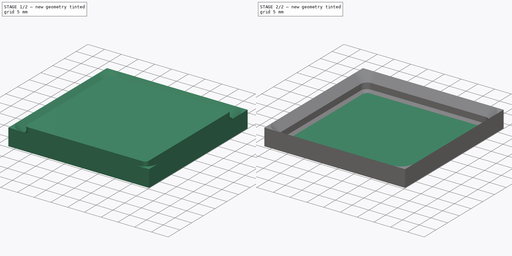
[diagram: build sequence overview — one tinted view per stage of 2, left to right]
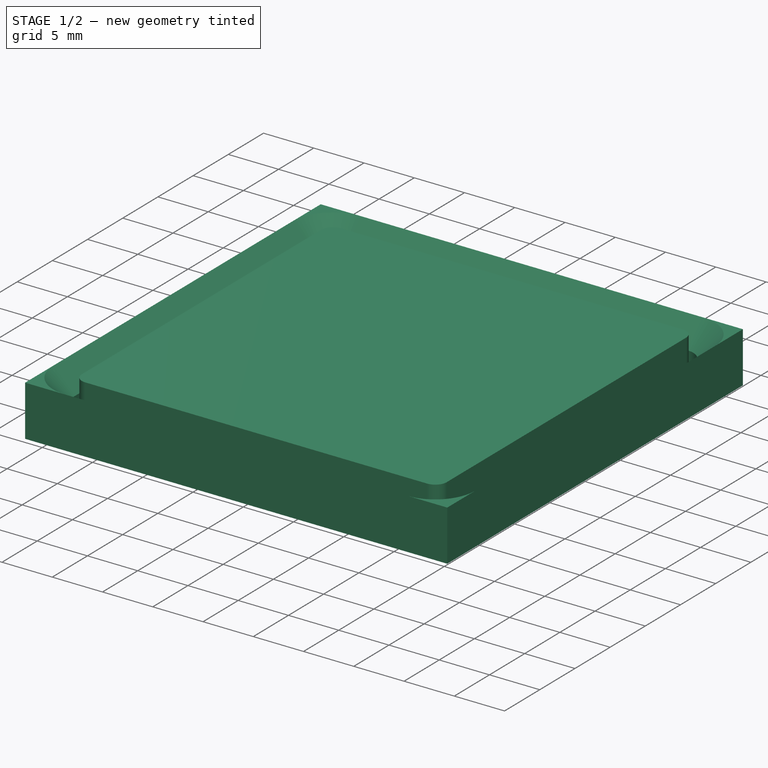
[diagram: stage 1 of 2 — iso view after this stage's code; geometry added in this stage tinted green]
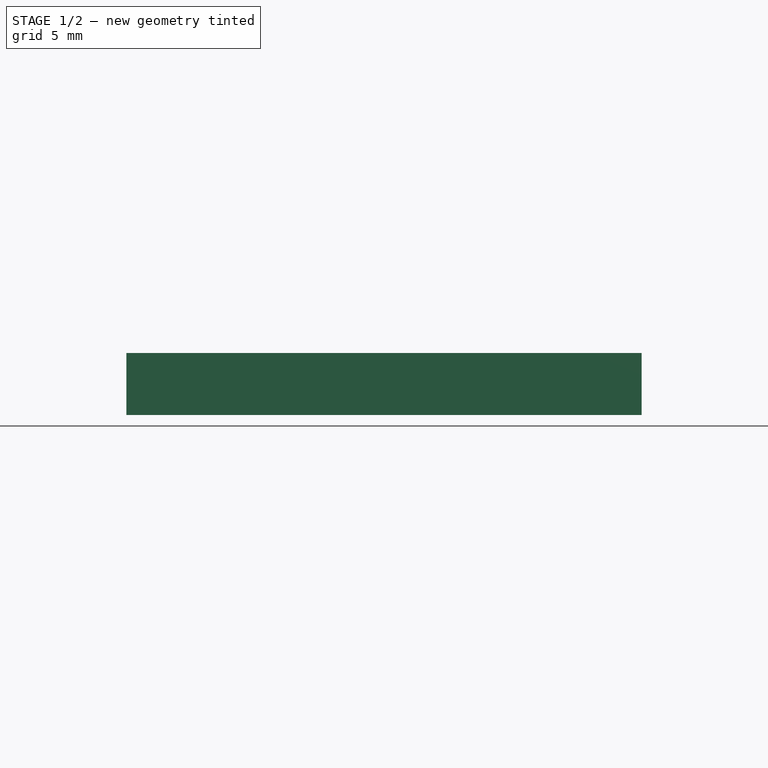
[diagram: stage 1 of 2 — front view after this stage's code; geometry added in this stage tinted green]
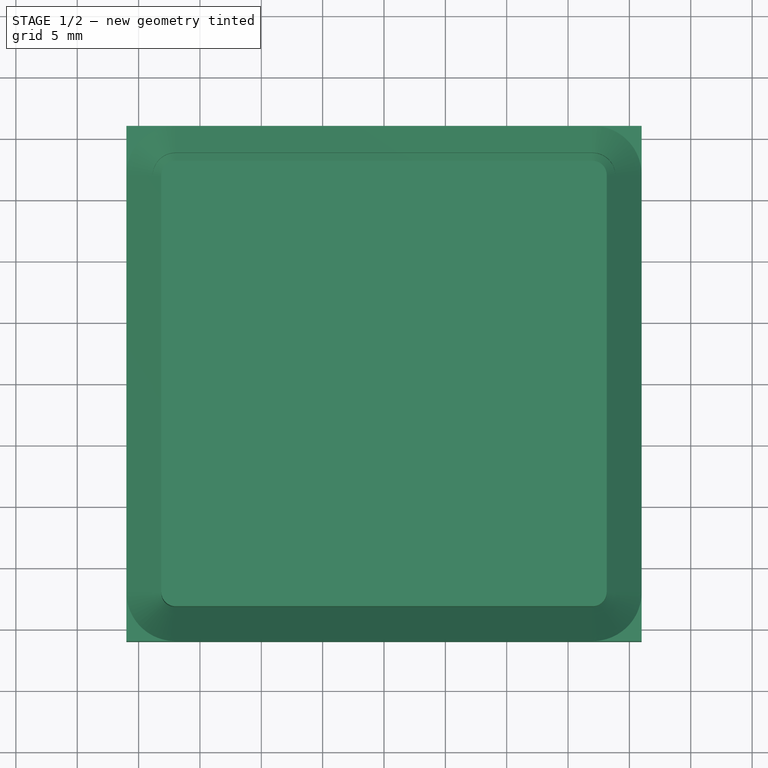
[diagram: stage 1 of 2 — top view after this stage's code; geometry added in this stage tinted green]
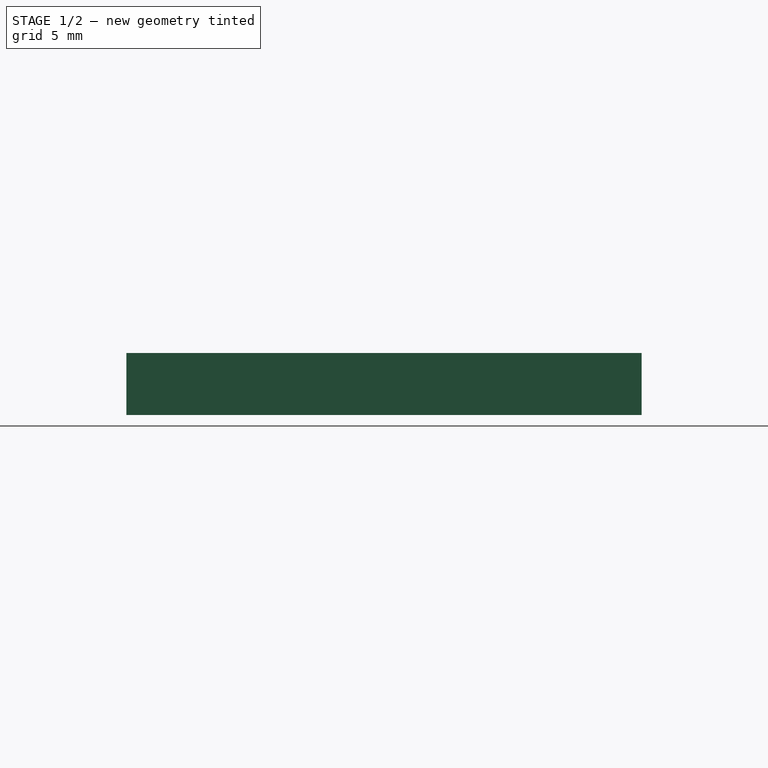
[diagram: stage 1 of 2 — right view after this stage's code; geometry added in this stage tinted green]
FCSTD DOCUMENT  (FreeCAD 1.0R38806 (Git))
Label: Opgave_3.0.5
License: All rights reserved
LicenseURL: http://en.wikipedia.org/wiki/All_rights_reserved
objects: Sketcher::SketchObject×4, App::VarSet×1, PartDesign::Pad×1, PartDesign::SubtractivePipe×1, PartDesign::Pocket×1, PartDesign::Body×1, App::Part×1
note: 18 computed .brp shape members not serialized (recipe doc carries the construction recipe); baked Part::Feature solids carry a one-line shape summary decoded from their .brp

FEATURE [App::VarSet] VarSet
  BasePlateGridX = 2
  BasePlateGridY = 3
  BasePlateProfileAngle = 45
  BasePlateProfileHeigth = 4.65
  BasePlateProfileLower = 0.7
  BasePlateProfileMiddle = 1.8
  BasePlateProfileTop = 2.15
  BaseplatePad2nd_Length = 0.4
  BaseplatePadLength = 3
  GridOuterRadius = 4
  GridSize = 42
  expr: BasePlateProfileHeigth = BasePlateProfileLower + BasePlateProfileMiddle + BasePlateProfileTop
FEATURE [Sketcher::SketchObject] Sketch
  ArcFitTolerance = 1e-06
  AttachmentSupport = -> [XY_Plane001]
  FullyConstrained = true
  MakeInternals = false
  MapMode = 5
  expr: Constraints[9] = VarSet.GridSize
  sketch-geometry (4):
    g0: LineSegment StartX=-21 StartY=-21 StartZ=0 EndX=21 EndY=-21 EndZ=0
    g1: LineSegment StartX=21 StartY=-21 StartZ=0 EndX=21 EndY=21 EndZ=0
    g2: LineSegment StartX=21 StartY=21 StartZ=0 EndX=-21 EndY=21 EndZ=0
    g3: LineSegment StartX=-21 StartY=21 StartZ=0 EndX=-21 EndY=-21 EndZ=0
  constraints (11):
    c: Coincident(g0,g1)
    c: Coincident(g1,g2)
    c: Coincident(g2,g3)
    c: Coincident(g3,g0)
    c: Horizontal(g0)
    c: Horizontal(g2)
    c: Vertical(g1)
    c: Vertical(g3)
    c: Equal(g3,g0)
    c: DistanceX(g0,g0) = 42
    c: Symmetric(g2,g0,g-1)
FEATURE [Sketcher::SketchObject] Sketch001
  ArcFitTolerance = 1e-06
  AttachmentSupport = -> [XY_Plane001]
  ExternalGeometry = -> [Sketch]
  FullyConstrained = true
  MakeInternals = false
  MapMode = 5
  expr: Constraints[20] = VarSet.GridOuterRadius
  sketch-geometry (10):
    g0: LineSegment StartX=-17 StartY=-21 StartZ=0 EndX=17 EndY=-21 EndZ=0
    g1: LineSegment StartX=21 StartY=-17 StartZ=0 EndX=21 EndY=17 EndZ=0
    g2: LineSegment StartX=17 StartY=21 StartZ=0 EndX=-17 EndY=21 EndZ=0
    g3: LineSegment StartX=-21 StartY=17 StartZ=0 EndX=-21 EndY=-17 EndZ=0
    g4: ArcOfCircle CenterX=-17 CenterY=-17 CenterZ=0 NormalX=0 NormalY=0 NormalZ=1 AngleXU=0 Radius=4 StartAngle=3.14159 EndAngle=4.71239
    g5: ArcOfCircle CenterX=17 CenterY=-17 CenterZ=0 NormalX=0 NormalY=0 NormalZ=1 AngleXU=0 Radius=4 StartAngle=4.71239 EndAngle=6.28319
    g6: ArcOfCircle CenterX=17 CenterY=17 CenterZ=0 NormalX=0 NormalY=0 NormalZ=1 AngleXU=0 Radius=4 StartAngle=3e-16 EndAngle=1.5708
    g7: ArcOfCircle CenterX=-17 CenterY=17 CenterZ=0 NormalX=0 NormalY=0 NormalZ=1 AngleXU=0 Radius=4 StartAngle=1.5708 EndAngle=3.14159
    g8: GeomPoint [constr] X=21 Y=21 Z=0
    g9: GeomPoint [constr] X=0 Y=0 Z=0
  constraints (22):
    c: Tangent(g0,g4) = -1.5708
    c: Tangent(g0,g5) = -1.5708
    c: Tangent(g1,g5) = -1.5708
    c: Tangent(g1,g6) = -1.5708
    c: Tangent(g2,g6) = -1.5708
    c: Tangent(g2,g7) = -1.5708
    c: Tangent(g3,g7) = -1.5708
    c: Tangent(g3,g4) = -1.5708
    c: Horizontal(g0)
    c: Horizontal(g2)
    c: Vertical(g1)
    c: Vertical(g3)
    c: Equal(g4,g5)
    c: Equal(g5,g6)
    c: Equal(g6,g7)
    c: Symmetric(g2,g0,g9)
    c: PointOnObject(g8,g1)
    c: PointOnObject(g8,g2)
    c: Coincident(g9,g-1)
    c: Equal(g3,g0)
    c: Radius(g4) = 4
    c: PointOnObject(g0,g-3)
FEATURE [Sketcher::SketchObject] Sketch002
  ArcFitTolerance = 1e-06
  AttachmentSupport = -> [XZ_Plane001]
  ExternalGeometry = -> [Sketch001]
  FullyConstrained = true
  MakeInternals = false
  MapMode = 5
  Placement = pos=(0,0,0) rot=(1,0,0;1.5708rad)
  expr: Constraints[10] = VarSet.BasePlateProfileMiddle
  expr: Constraints[11] = VarSet.BasePlateProfileTop
  expr: Constraints[12] = VarSet.BasePlateProfileAngle
  expr: Constraints[9] = VarSet.BasePlateProfileLower
  sketch-geometry (5):
    g0: LineSegment StartX=21 StartY=4.65 StartZ=0 EndX=18.85 EndY=2.5 EndZ=0
    g1: LineSegment StartX=18.85 StartY=2.5 StartZ=0 EndX=18.85 EndY=0.7 EndZ=0
    g2: LineSegment StartX=18.85 StartY=0.7 StartZ=0 EndX=18.15 EndY=0 EndZ=0
    g3: LineSegment StartX=18.15 StartY=0 StartZ=0 EndX=18.15 EndY=4.65 EndZ=0
    g4: LineSegment StartX=18.15 StartY=4.65 StartZ=0 EndX=21 EndY=4.65 EndZ=0
  constraints (15):
    c: Coincident(g0,g1)
    c: Vertical(g1)
    c: Coincident(g1,g2)
    c: Coincident(g2,g3)
    c: Vertical(g3)
    c: Coincident(g3,g4)
    c: Coincident(g4,g0)
    c: Horizontal(g4)
    c: Parallel(g0,g2)
    c: DistanceY(g2,g1) = 0.7
    c: DistanceY(g1,g0) = 1.8
    c: DistanceY(g0,g0) = 2.15
    c: Angle(g4,g0) = 0.785398
    c: Vertical(g-3,g0)
    c: Horizontal(g2,g-3)
FEATURE [PartDesign::Pad] Pad
  Direction = (0,0,1)
  Length = 4.65
  Length2 = 0.4
  Profile = -> Sketch
  ReferenceAxis = -> Sketch [N_Axis]
  Refine = true
  Suppressed = false
  Type = 4
  expr: Length = VarSet.BasePlateProfileHeigth
  expr: Length2 = VarSet.BaseplatePad2nd_Length
FEATURE [PartDesign::SubtractivePipe] SubtractivePipe
  AuxilleryCurvelinear = true
  AuxillerySpineTangent = false
  BaseFeature = -> Pad
  Binormal = (0,0,0)
  Mode = 0
  Profile = -> Sketch002
  Refine = true
  Spine = -> Sketch001
  SpineTangent = false
  Suppressed = false
  Transformation = 0
  Transition = 0
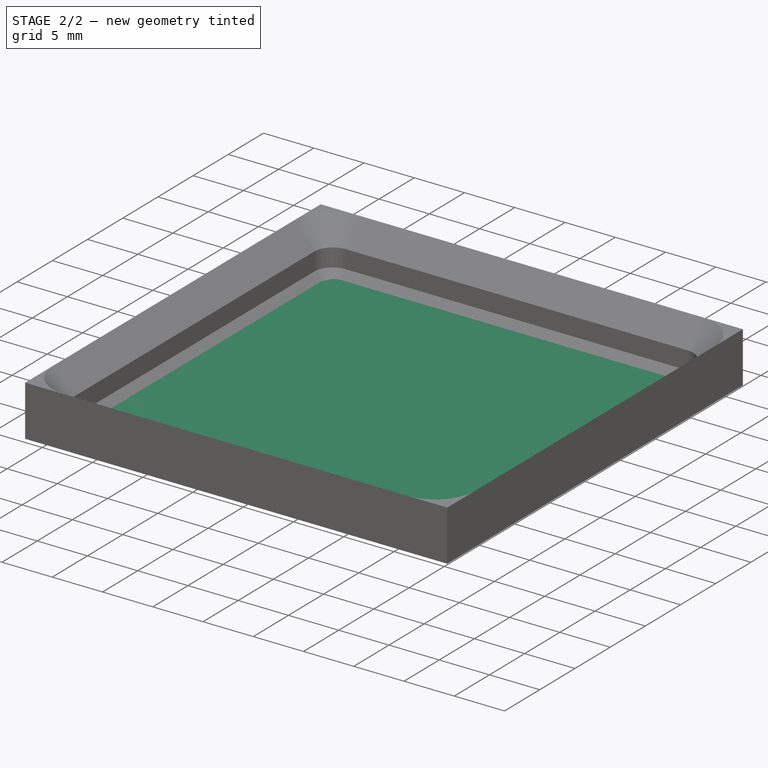
[diagram: stage 2 of 2 — iso view after this stage's code; geometry added in this stage tinted green]
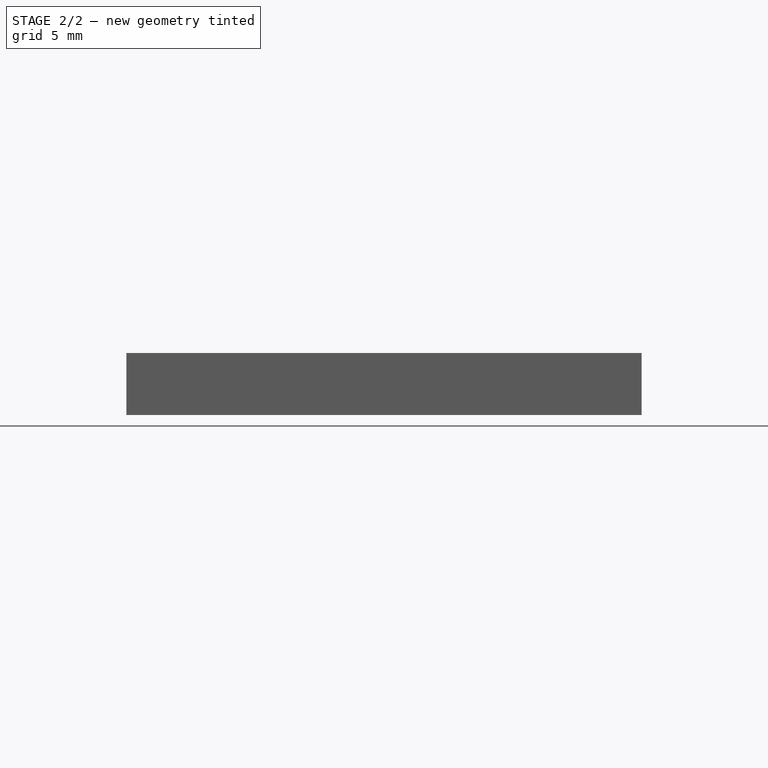
[diagram: stage 2 of 2 — front view after this stage's code; geometry added in this stage tinted green]
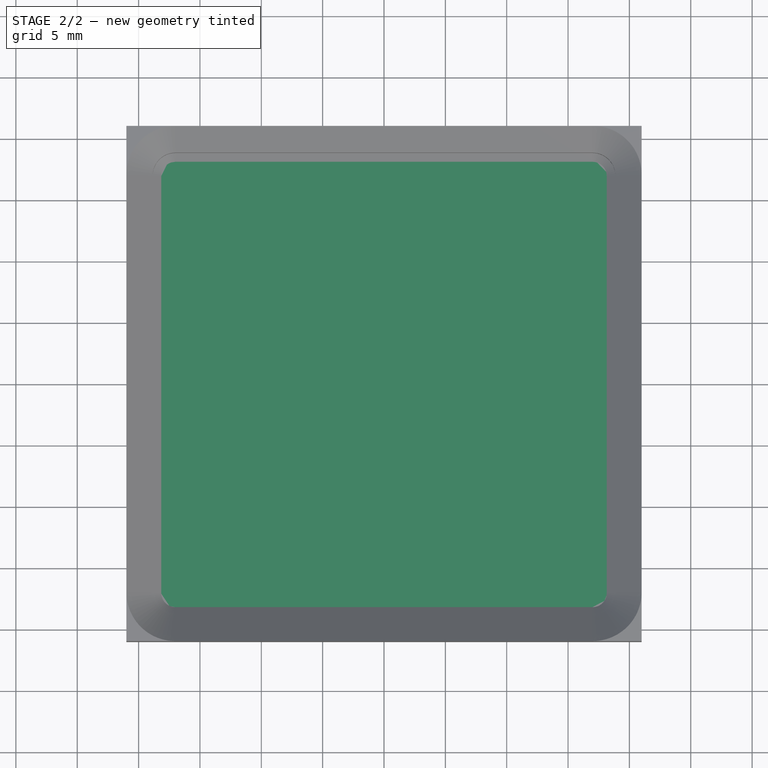
[diagram: stage 2 of 2 — top view after this stage's code; geometry added in this stage tinted green]
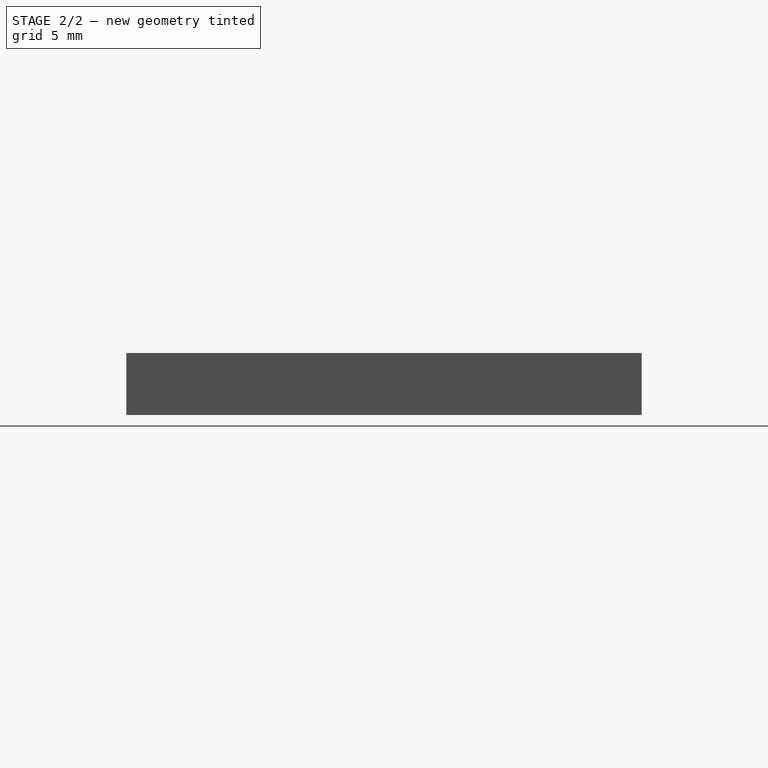
[diagram: stage 2 of 2 — right view after this stage's code; geometry added in this stage tinted green]
FEATURE [Sketcher::SketchObject] Sketch003
  ArcFitTolerance = 1e-06
  AttachmentSupport = -> [XY_Plane001]
  ExternalGeometry = -> [SubtractivePipe]
  FullyConstrained = true
  MakeInternals = false
  MapMode = 5
  sketch-geometry (10):
    g0: LineSegment StartX=18.15 StartY=-17 StartZ=0 EndX=18.15 EndY=17 EndZ=0
    g1: LineSegment StartX=17 StartY=18.15 StartZ=0 EndX=-17 EndY=18.15 EndZ=0
    g2: LineSegment StartX=-18.15 StartY=17 StartZ=0 EndX=-18.15 EndY=-17 EndZ=0
    g3: LineSegment StartX=-17 StartY=-18.15 StartZ=0 EndX=17 EndY=-18.15 EndZ=0
    g4: ArcOfCircle CenterX=17 CenterY=-17 CenterZ=0 NormalX=0 NormalY=0 NormalZ=1 AngleXU=0 Radius=1.15 StartAngle=4.71239 EndAngle=6.28319
    g5: ArcOfCircle CenterX=17 CenterY=17 CenterZ=0 NormalX=0 NormalY=0 NormalZ=1 AngleXU=0 Radius=1.15 StartAngle=1.52892e-11 EndAngle=1.5708
    g6: ArcOfCircle CenterX=-17 CenterY=17 CenterZ=0 NormalX=0 NormalY=0 NormalZ=1 AngleXU=0 Radius=1.15 StartAngle=1.5708 EndAngle=3.14159
    g7: ArcOfCircle CenterX=-17 CenterY=-17 CenterZ=0 NormalX=0 NormalY=0 NormalZ=1 AngleXU=0 Radius=1.15 StartAngle=3.14159 EndAngle=4.71239
    g8: GeomPoint [constr] X=-18.15 Y=18.15 Z=0
    g9: GeomPoint [constr] X=0 Y=0 Z=0
  constraints (21):
    c: Tangent(g0,g4) = -1.5708
    c: Tangent(g0,g5) = -1.5708
    c: Tangent(g1,g5) = -1.5708
    c: Tangent(g1,g6) = -1.5708
    c: Tangent(g2,g6) = -1.5708
    c: Tangent(g2,g7) = -1.5708
    c: Tangent(g3,g7) = -1.5708
    c: Tangent(g3,g4) = -1.5708
    c: Vertical(g0)
    c: Vertical(g2)
    c: Horizontal(g1)
    c: Horizontal(g3)
    c: Equal(g4,g5)
    c: Equal(g5,g6)
    c: Equal(g6,g7)
    c: Symmetric(g2,g0,g9)
    c: PointOnObject(g8,g1)
    c: PointOnObject(g8,g2)
    c: Coincident(g9,g-1)
    c: Coincident(g6,g-3)
    c: Equal(g-3,g6)
FEATURE [PartDesign::Pocket] Pocket
  BaseFeature = -> SubtractivePipe
  Direction = (0,0,-1)
  Length = 5
  Length2 = 5
  Profile = -> Sketch003
  ReferenceAxis = -> Sketch003 [N_Axis]
  Refine = true
  Reversed = true
  Suppressed = false
  Type = 1
FEATURE [PartDesign::Body] Body  label="Baseplate"
  AllowCompound = true
  Group = -> [Sketch,Sketch001,Sketch002,Pad,SubtractivePipe,Sketch003,Pocket]
  Origin = -> Origin001
  Tip = -> Pocket
FEATURE [App::Part] Part
  Group = -> [Body]
  Origin = -> Origin
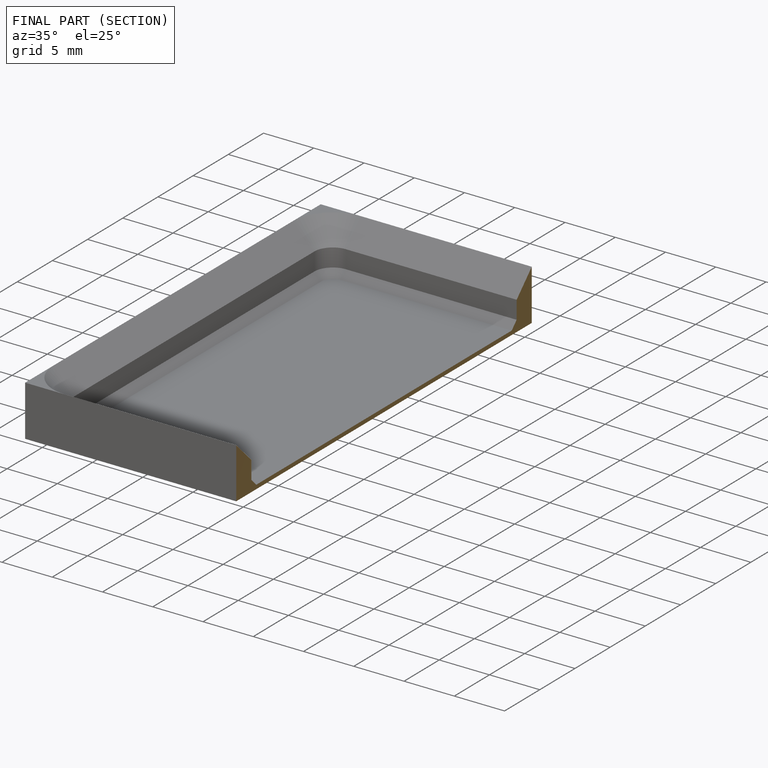
[diagram: finished part — half-section view (interior)]
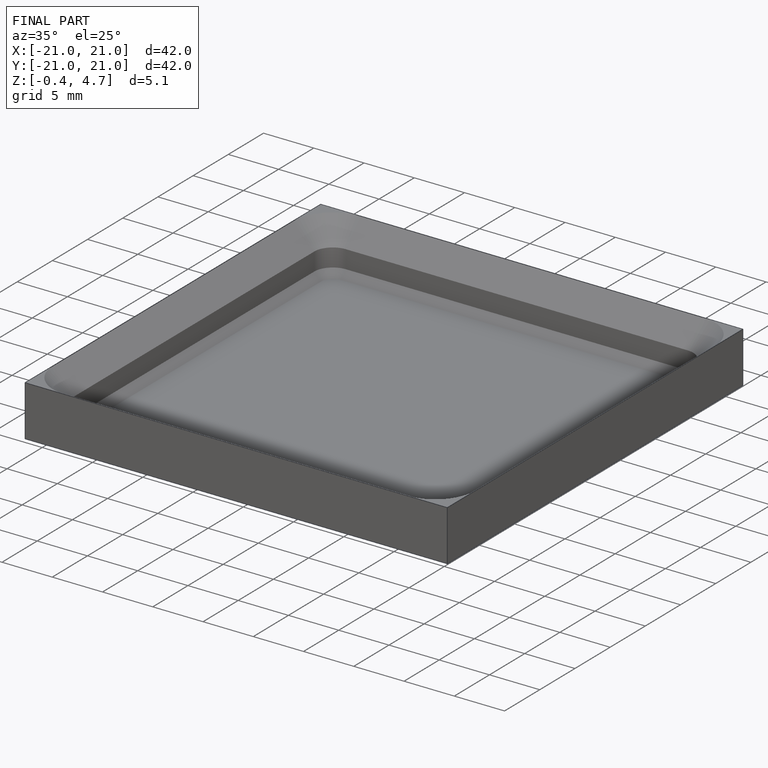
[diagram: finished part — iso view with bounding-box wireframe]
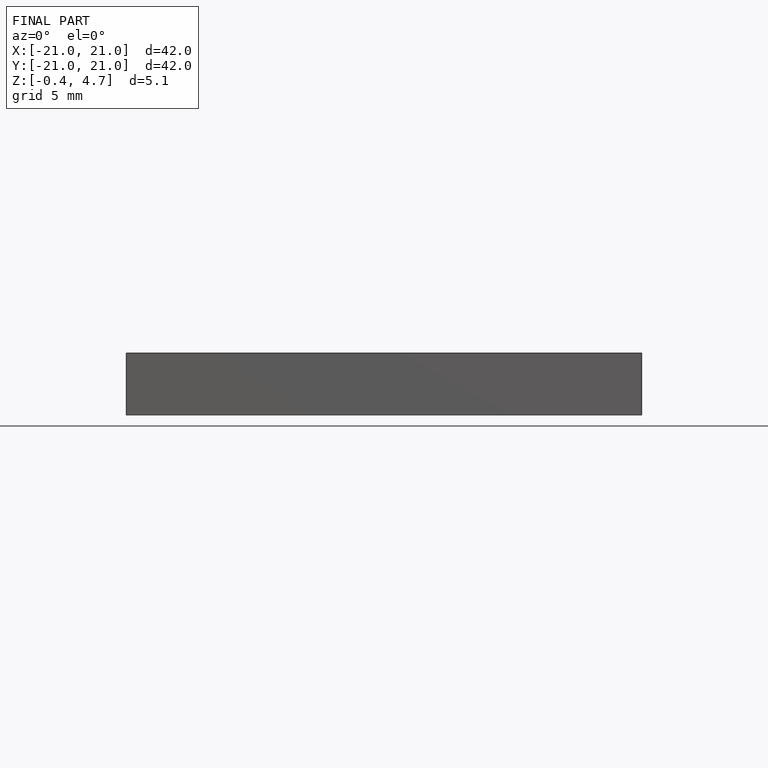
[diagram: finished part — front view with bounding-box wireframe]
